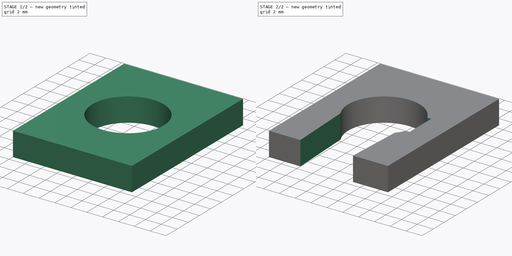
[diagram: build sequence overview — one tinted view per stage of 2, left to right]
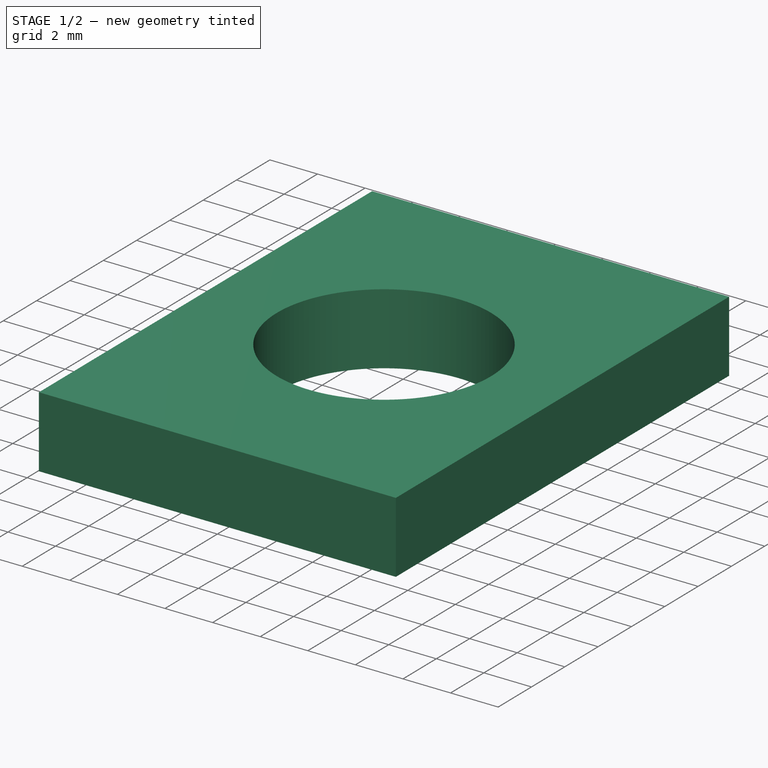
[diagram: stage 1 of 2 — iso view after this stage's code; geometry added in this stage tinted green]
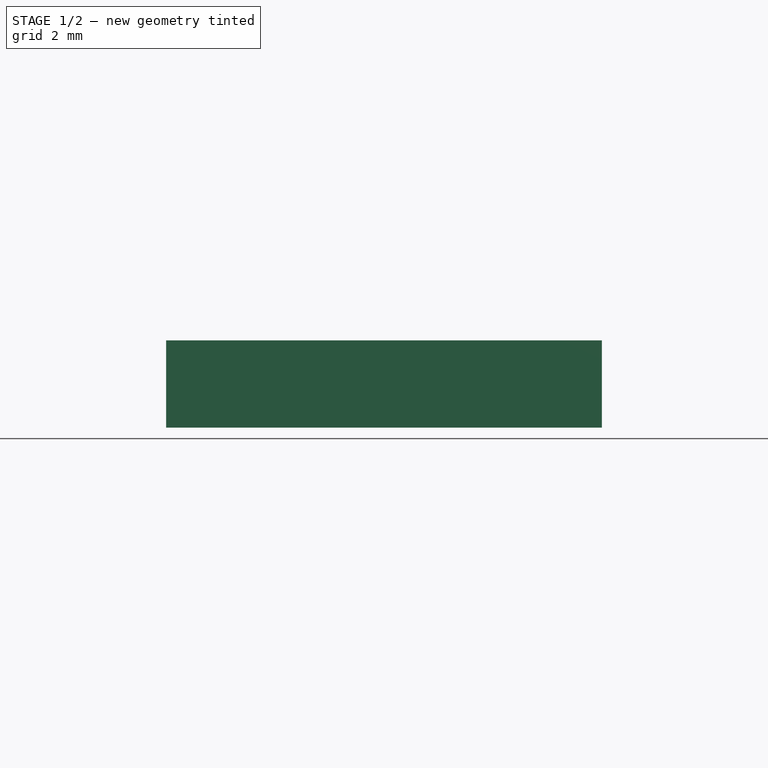
[diagram: stage 1 of 2 — front view after this stage's code; geometry added in this stage tinted green]
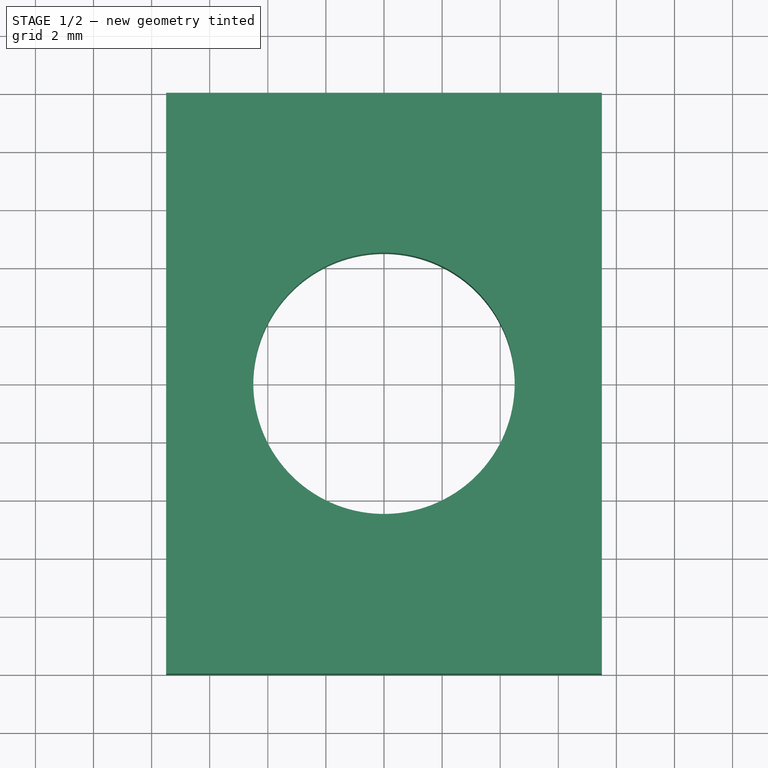
[diagram: stage 1 of 2 — top view after this stage's code; geometry added in this stage tinted green]
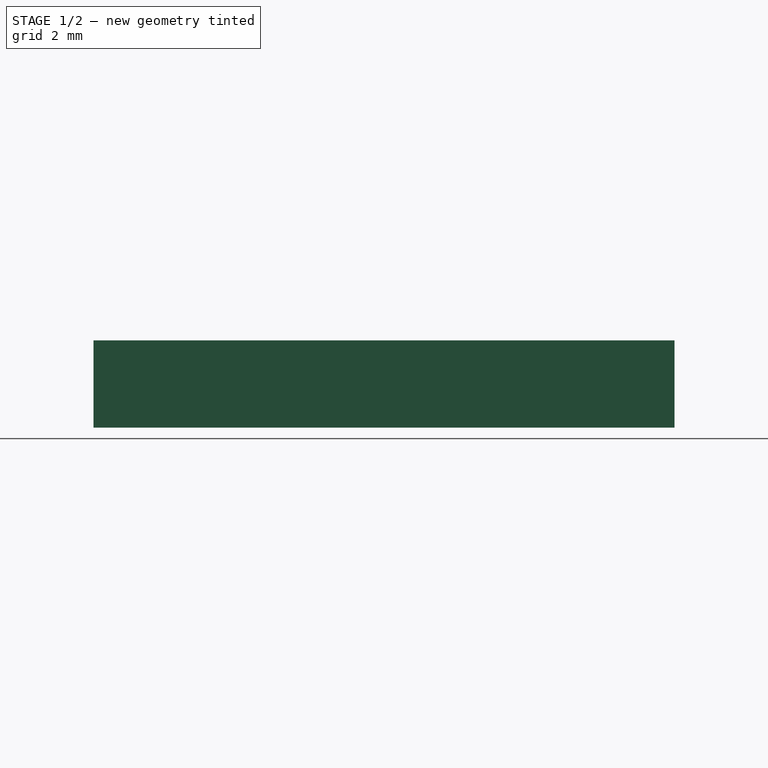
[diagram: stage 1 of 2 — right view after this stage's code; geometry added in this stage tinted green]
FCSTD DOCUMENT  (FreeCAD 0.18.4R)
Label: DC_connector_bracket
License: All rights reserved
LicenseURL: http://en.wikipedia.org/wiki/All_rights_reserved
objects: Sketcher::SketchObject×4, PartDesign::Pocket×3, PartDesign::Pad×1, PartDesign::Body×1
note: 13 computed .brp shape members not serialized (recipe doc carries the construction recipe); baked Part::Feature solids carry a one-line shape summary decoded from their .brp

FEATURE [Sketcher::SketchObject] Sketch
  MapMode = 5
  Support = -> [XY_Plane]
  sketch-geometry (2):
    g0: Circle CenterX=0 CenterY=0 CenterZ=0 NormalX=0 NormalY=0 NormalZ=1 AngleXU=0 Radius=4.5
    g1: LineSegment [constr] StartX=0 StartY=0 StartZ=0 EndX=-4.5 EndY=0 EndZ=0
  constraints (5):
    c: Coincident(g0,g-1)
    c: Diameter(g0) = 9
    c: Coincident(g1,g0)
    c: PointOnObject(g1,g0)
    c: Horizontal(g1)
FEATURE [Sketcher::SketchObject] Sketch001
  MapMode = 5
  Support = -> [XY_Plane]
  sketch-geometry (6):
    g0: LineSegment StartX=-7.5 StartY=10 StartZ=0 EndX=7.5 EndY=10 EndZ=0
    g1: LineSegment StartX=7.5 StartY=10 StartZ=0 EndX=7.5 EndY=-10 EndZ=0
    g2: LineSegment StartX=7.5 StartY=-10 StartZ=0 EndX=-7.5 EndY=-10 EndZ=0
    g3: LineSegment StartX=-7.5 StartY=-10 StartZ=0 EndX=-7.5 EndY=10 EndZ=0
    g4: GeomPoint X=0 Y=10 Z=0
    g5: GeomPoint X=-7.5 Y=0 Z=0
  constraints (14):
    c: Coincident(g0,g1)
    c: Coincident(g1,g2)
    c: Coincident(g2,g3)
    c: Coincident(g3,g0)
    c: Horizontal(g0)
    c: Horizontal(g2)
    c: Vertical(g1)
    c: Vertical(g3)
    c: Symmetric(g0,g0,g4)
    c: Symmetric(g2,g0,g5)
    c: DistanceX(g4,g-1) = 0
    c: DistanceY(g5,g-1) = 0
    c: DistanceX(g0,g0) = 15
    c: DistanceY(g1,g1) = 20
FEATURE [PartDesign::Pad] Pad
  Length = 3
  Length2 = 100
  Profile = -> Sketch001
  Reversed = true
  Type = 0
FEATURE [PartDesign::Pocket] Pocket
  BaseFeature = -> Pad
  Length = 0
  Length2 = 100
  Profile = -> Sketch
  Type = 3
  UpToFace = -> Pad [Face6]
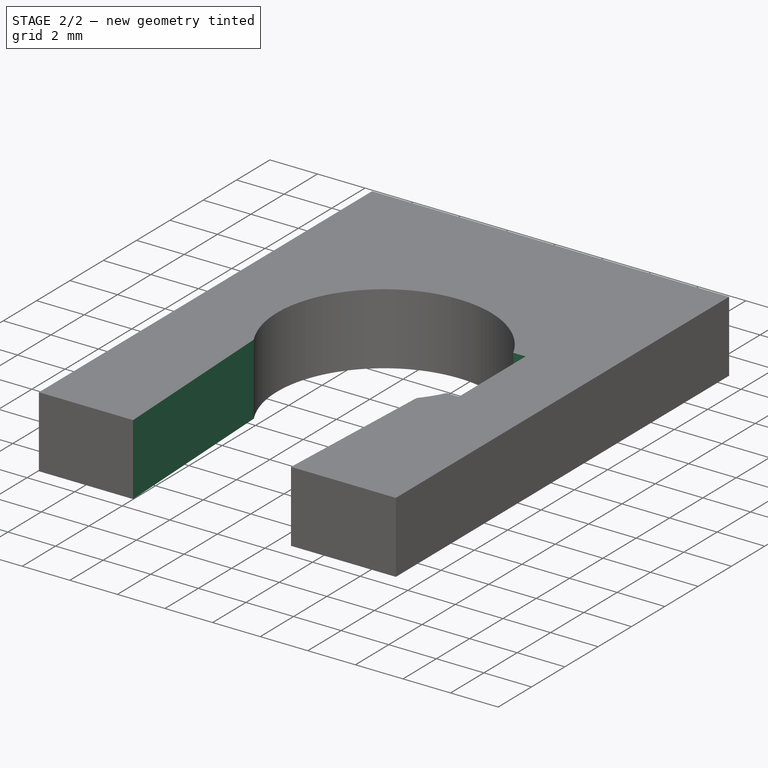
[diagram: stage 2 of 2 — iso view after this stage's code; geometry added in this stage tinted green]
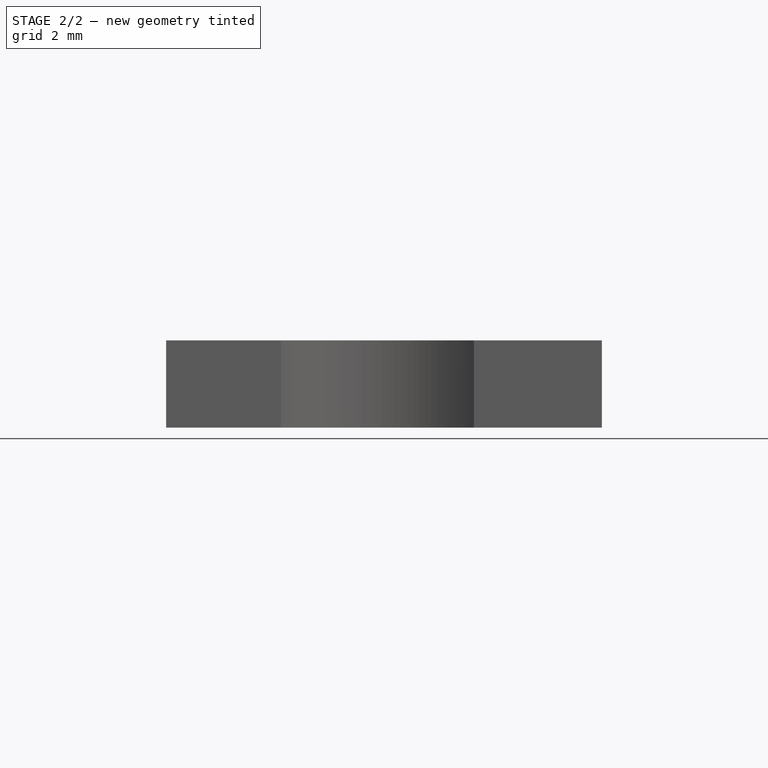
[diagram: stage 2 of 2 — front view after this stage's code; geometry added in this stage tinted green]
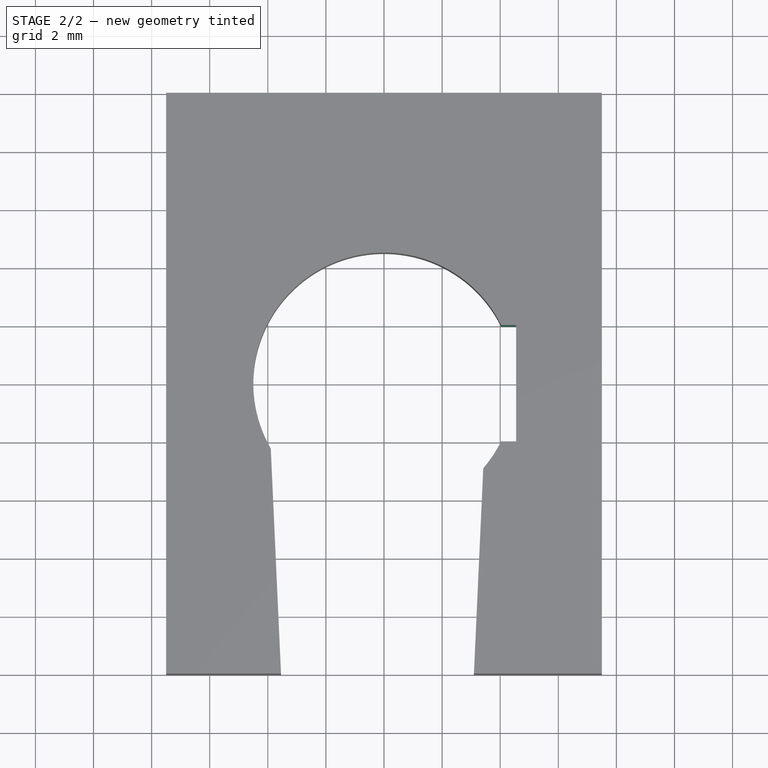
[diagram: stage 2 of 2 — top view after this stage's code; geometry added in this stage tinted green]
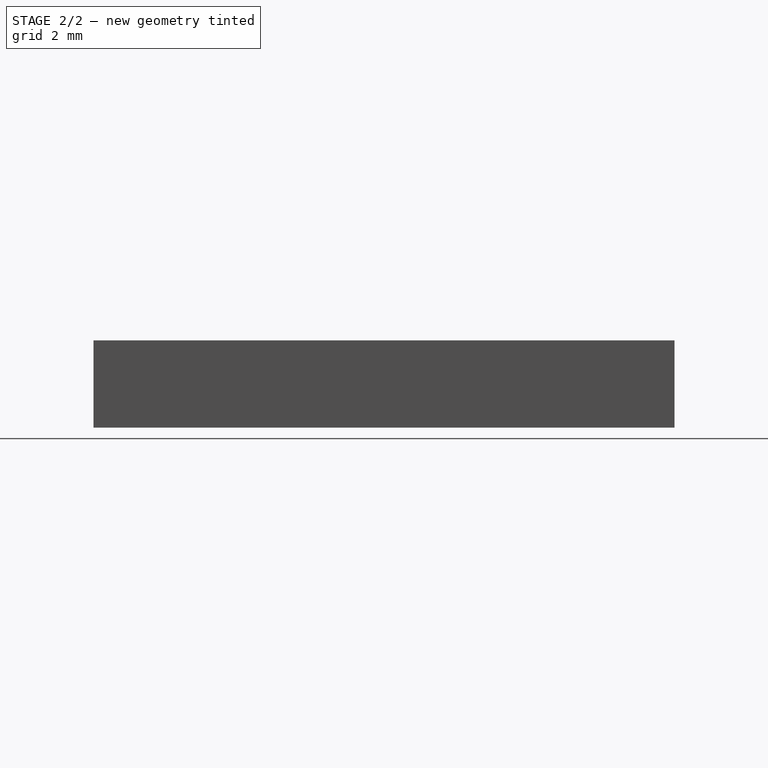
[diagram: stage 2 of 2 — right view after this stage's code; geometry added in this stage tinted green]
FEATURE [Sketcher::SketchObject] Sketch002
  MapMode = 5
  Support = -> [Pocket]
  sketch-geometry (5):
    g0: LineSegment StartX=2.55 StartY=2 StartZ=0 EndX=4.55 EndY=2 EndZ=0
    g1: LineSegment StartX=4.55 StartY=2 StartZ=0 EndX=4.55 EndY=-2 EndZ=0
    g2: LineSegment StartX=4.55 StartY=-2 StartZ=0 EndX=2.55 EndY=-2 EndZ=0
    g3: LineSegment StartX=2.55 StartY=-2 StartZ=0 EndX=2.55 EndY=2 EndZ=0
    g4: GeomPoint X=4.55 Y=0 Z=0
  constraints (13):
    c: Coincident(g0,g1)
    c: Coincident(g1,g2)
    c: Coincident(g2,g3)
    c: Coincident(g3,g0)
    c: Horizontal(g0)
    c: Horizontal(g2)
    c: Vertical(g1)
    c: Vertical(g3)
    c: Symmetric(g0,g1,g4)
    c: DistanceY(g-1,g4) = 0
    c: DistanceX(g-1,g4) = 4.55
    c: DistanceY(g1,g1) = 4
    c: DistanceX(g0,g0) = 2
FEATURE [PartDesign::Pocket] Pocket001
  BaseFeature = -> Pocket
  Length = 0
  Length2 = 100
  Profile = -> Sketch002
  Type = 3
  UpToFace = -> Pocket [Face5]
FEATURE [Sketcher::SketchObject] Sketch003
  ExternalGeometry = -> [Pocket001]
  MapMode = 5
  Support = -> [Pocket001]
  sketch-geometry (4):
    g0: LineSegment StartX=3.05 StartY=-11 StartZ=0 EndX=-3.5 EndY=-11 EndZ=0
    g1: LineSegment StartX=-3.5 StartY=-11 StartZ=0 EndX=-4 EndY=0 EndZ=0
    g2: LineSegment StartX=-4 StartY=0 StartZ=0 EndX=3.55 EndY=0 EndZ=0
    g3: LineSegment StartX=3.55 StartY=0 StartZ=0 EndX=3.05 EndY=-11 EndZ=0
  constraints (12):
    c: Coincident(g0,g1)
    c: Coincident(g1,g2)
    c: Coincident(g2,g3)
    c: Coincident(g3,g0)
    c: Horizontal(g0)
    c: Horizontal(g2)
    c: DistanceY(g1,g-1) = 0
    c: DistanceX(g-3,g2) = -1
    c: DistanceY(g3,g3) = 11
    c: DistanceX(g1,g0) = 0.5
    c: DistanceX(g0,g2) = 0.5
    c: DistanceX(g1,g-1) = 4
FEATURE [PartDesign::Pocket] Pocket002
  BaseFeature = -> Pocket001
  Length = 0
  Length2 = 100
  Profile = -> Sketch003
  Type = 3
  UpToFace = -> Pocket001 [Face5]
FEATURE [PartDesign::Body] Body
  Group = -> [Sketch,Sketch001,Pad,Pocket,Sketch002,Pocket001,Sketch003,Pocket002]
  Origin = -> Origin
  Tip = -> Pocket002
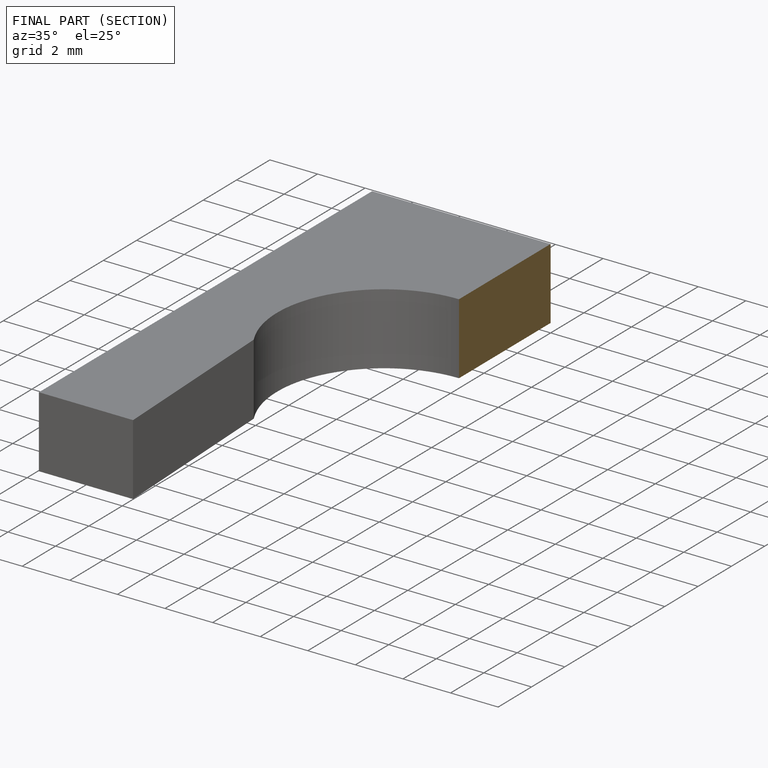
[diagram: finished part — half-section view (interior)]
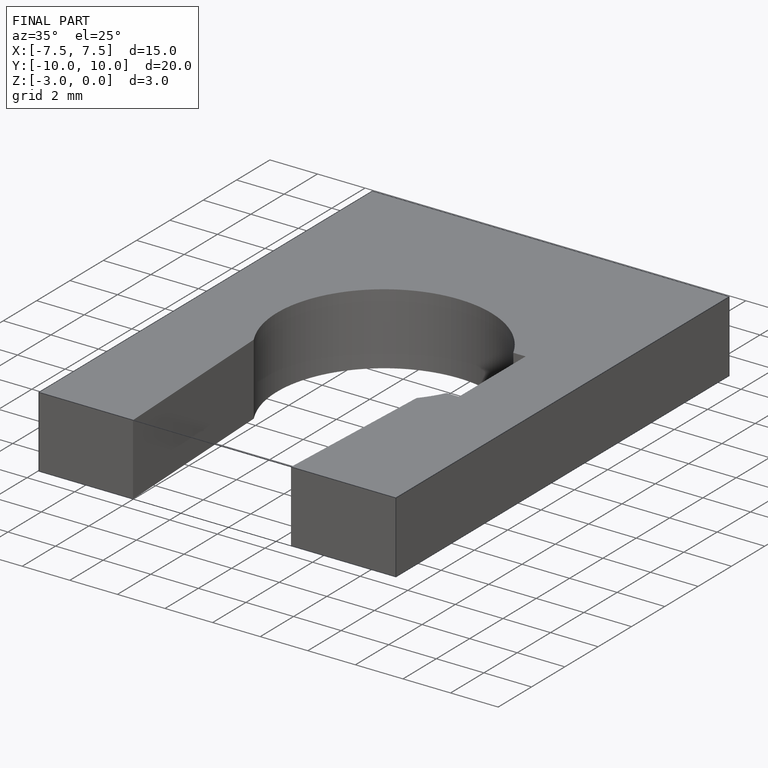
[diagram: finished part — iso view with bounding-box wireframe]
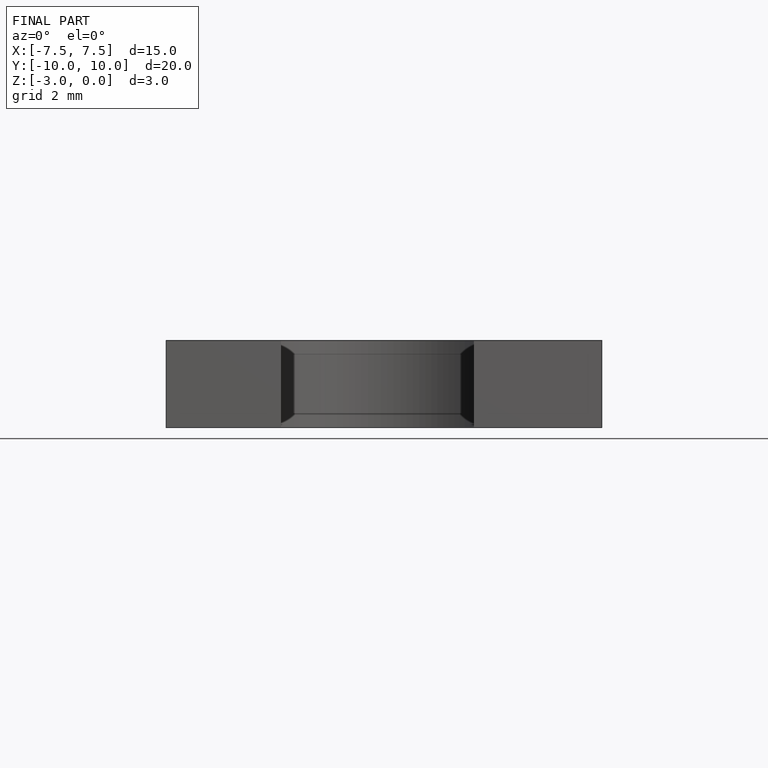
[diagram: finished part — front view with bounding-box wireframe]
